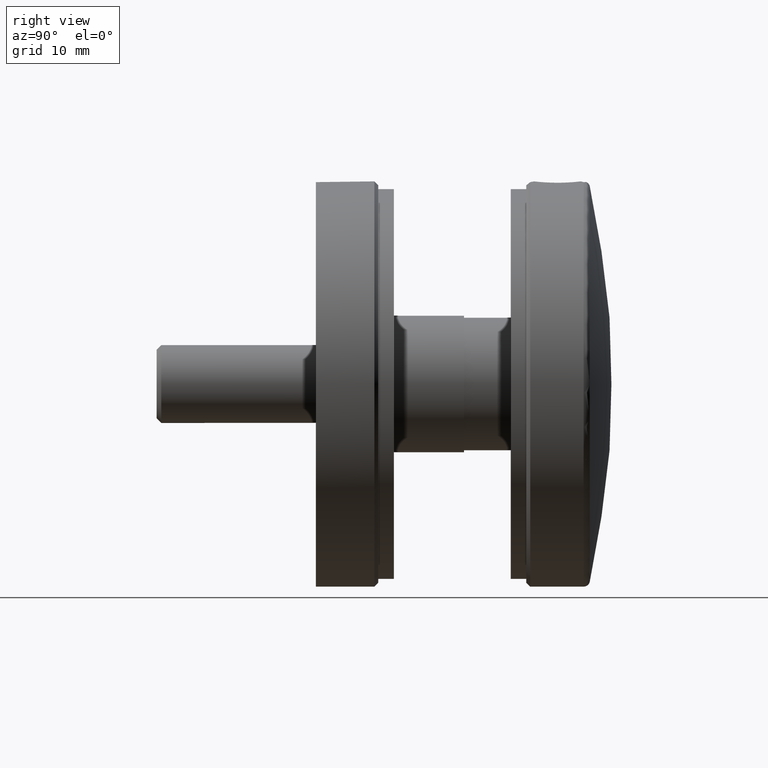
[diagram: clean part render]
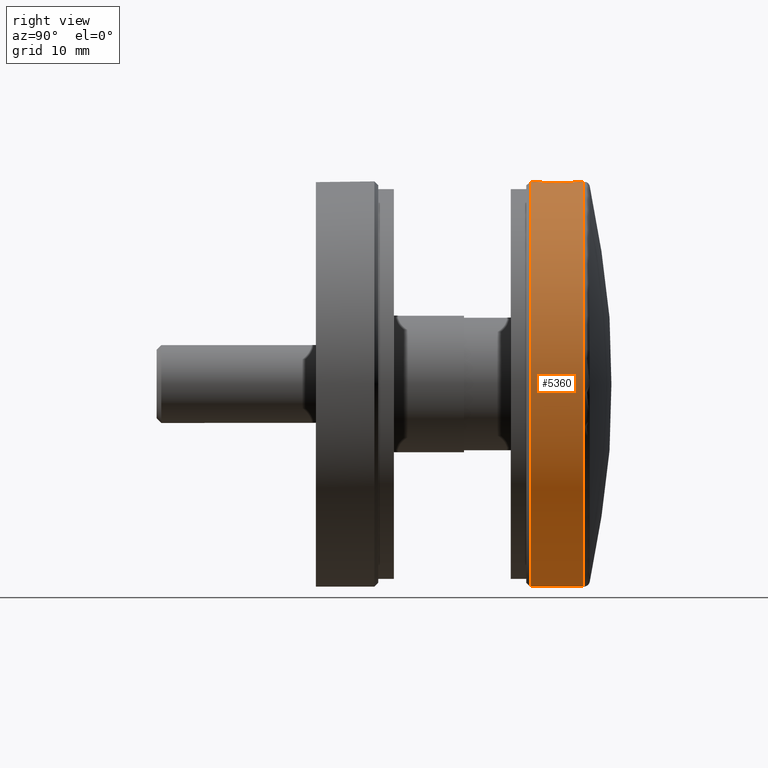
[diagram: same view with one face highlighted and labeled with its STEP entity id]
A machine part, right view. The second image highlights one B-rep face of the part: STEP entity #5360.
In plain terms, the highlighted cylindrical surface (bore or boss wall) has radius 26 mm, axis along (-0, -1, -0).
Its self-contained STEP definition (entity closure, byte-faithful):
#30 = CIRCLE ( 'NONE', #407, 26.00000000000000000 ) ;
#407 = AXIS2_PLACEMENT_3D ( 'NONE', #15301, #6650, #18016 ) ;
#735 = EDGE_LOOP ( 'NONE', ( #14445 ) ) ;
#1111 = CARTESIAN_POINT ( 'NONE',  ( -0.7796045846363135468, 9.096474947353174301, 25.98901706987856741 ) ) ;
#1172 = CARTESIAN_POINT ( 'NONE',  ( 2.902928602409397651, 11.21761824738087121, 25.83746369126680165 ) ) ;
#1233 = CARTESIAN_POINT ( 'NONE',  ( 2.259367191999810398, 13.98330208779995942, 25.90201740359187710 ) ) ;
#1295 = CARTESIAN_POINT ( 'NONE',  ( 2.258024676797180330, 10.01516929534798805, 25.90213498332273545 ) ) ;
#1313 = DIRECTION ( 'NONE',  ( 0.000000000000000000, 0.000000000000000000, -1.000000000000000000 ) ) ;
#1354 = CARTESIAN_POINT ( 'NONE',  ( 1.504046466543740523, 14.60321795858942728, 25.95698036821286436 ) ) ;
#1606 = EDGE_LOOP ( 'NONE', ( #15793 ) ) ;
#1650 = FACE_BOUND ( 'NONE', #735, .T. ) ;
#2440 = CARTESIAN_POINT ( 'NONE',  ( -2.604463692874469771, 10.49811864844873099, 25.86945821533745971 ) ) ;
#2499 = CARTESIAN_POINT ( 'NONE',  ( 1.831915627833451410, 14.38390114013664878, 25.93590312176945645 ) ) ;
#2556 = CARTESIAN_POINT ( 'NONE',  ( -1.985208033414802120, 9.742304057954541463, 25.92447032201573265 ) ) ;
#2614 = CARTESIAN_POINT ( 'NONE',  ( 0.3922386663974037346, 14.98079519086564204, 25.99776282357141710 ) ) ;
#2669 = CARTESIAN_POINT ( 'NONE',  ( -0.9701622282910388195, 9.154400163223010978, 25.98252887103858910 ) ) ;
#3825 = CARTESIAN_POINT ( 'NONE',  ( -1.828850462055285231, 14.38610005538056669, 25.93611007954821446 ) ) ;
#3885 = CARTESIAN_POINT ( 'NONE',  ( -2.846471190645786908, 12.96760209234577665, 25.84382593197624445 ) ) ;
#3945 = CARTESIAN_POINT ( 'NONE',  ( 2.999999999999992895, 11.99999999999999645, 25.82634314028991440 ) ) ;
#4002 = CARTESIAN_POINT ( 'NONE',  ( -2.697477801571565692, 10.67267253741143662, 25.85980002059914540 ) ) ;
#4059 = CARTESIAN_POINT ( 'NONE',  ( -2.981150286349715461, 11.61048699837327547, 25.82855464327467487 ) ) ;
#4151 = AXIS2_PLACEMENT_3D ( 'NONE', #7791, #16233, #10621 ) ;
#4215 = CARTESIAN_POINT ( 'NONE',  ( 2.999999999999993339, 11.99999999999999645, 25.82634314028991795 ) ) ;
#4676 = CYLINDRICAL_SURFACE ( 'NONE', #12745, 26.00000000000000000 ) ;
#5061 = CIRCLE ( 'NONE', #4151, 25.99999999999999645 ) ;
#5206 = CARTESIAN_POINT ( 'NONE',  ( 0.000000000000000000, 0.000000000000000000, 0.000000000000000000 ) ) ;
#5243 = CARTESIAN_POINT ( 'NONE',  ( -2.601817656857963179, 13.50622143525577457, 25.86972088012400306 ) ) ;
#5302 = CARTESIAN_POINT ( 'NONE',  ( -0.3960800891403037927, 9.019838661629146159, 25.99769051530946840 ) ) ;
#5354 = FACE_OUTER_BOUND ( 'NONE', #6028, .T. ) ;
#5360 = ADVANCED_FACE ( 'NONE', ( #5354, #1650, #7798 ), #4676, .T. ) ;
#5364 = CARTESIAN_POINT ( 'NONE',  ( -2.695847567316081772, 13.33081100915356210, 25.85997182781257564 ) ) ;
#5422 = CARTESIAN_POINT ( 'NONE',  ( -1.328482013767582348, 14.69699880324720809, 25.96667512040695058 ) ) ;
#5479 = CARTESIAN_POINT ( 'NONE',  ( -2.903294483696318817, 12.78061369236109002, 25.83742208091259229 ) ) ;
#6028 = EDGE_LOOP ( 'NONE', ( #10546 ) ) ;
#6650 = DIRECTION ( 'NONE',  ( 0.000000000000000000, 1.000000000000000000, 0.000000000000000000 ) ) ;
#6669 = CARTESIAN_POINT ( 'NONE',  ( 2.695823260802120203, 13.33086144524444272, 25.85997437936806520 ) ) ;
#6727 = CARTESIAN_POINT ( 'NONE',  ( 0.7744147086170469763, 9.095084657103818415, 25.98917292353332797 ) ) ;
#6789 = CARTESIAN_POINT ( 'NONE',  ( 0.1974822290173404438, 14.99989151536007981, 25.99998748254343894 ) ) ;
#6848 = CARTESIAN_POINT ( 'NONE',  ( 0.1955564443005312070, 8.999817893884703324, 26.00002101223516604 ) ) ;
#6909 = CARTESIAN_POINT ( 'NONE',  ( 2.980516047926724088, 11.60548793989382688, 25.82862846835401882 ) ) ;
#7699 = B_SPLINE_CURVE_WITH_KNOTS ( 'NONE', 3,
 ( #9358, #17909, #10929, #12311, #18215, #6669, #15318, #16786, #1233, #13971, #2499, #1354, #15260, #13861, #13915, #2614, #6789, #16663, #8228, #9769, #12373, #5422, #13743, #3825, #9542, #12495, #16540, #5243, #5364, #3885, #5479, #9656, #18094, #8104, #4059, #8283, #11050, #4002, #2440, #10990, #15143, #2556, #18034, #13805, #17978, #2669, #1111, #5302, #15202, #6848, #16728, #6727, #11112, #12433, #15375, #18154, #9710, #1295, #16601, #8342, #8165, #9602, #1172, #6909, #12558, #3945 ),
 .UNSPECIFIED., .T., .F.,
 ( 4, 2, 2, 2, 2, 2, 2, 2, 2, 2, 2, 2, 2, 2, 2, 2, 2, 2, 2, 2, 2, 2, 2, 2, 2, 2, 2, 2, 2, 2, 2, 2, 4 ),
 ( 0.000000000000000000, 0.0005866289597237301289, 0.001173257919447460258, 0.001759886879171190278, 0.002346515838894920516, 0.002933144798618650753, 0.003519773758342380557, 0.004106402718066110361, 0.004693031677789841032, 0.005279660637513570835, 0.005866289597237301506, 0.006452918556961031310, 0.007039547516684761114, 0.007626176476408492652, 0.008212805436132224191, 0.008799434395855955729, 0.009386063355579685533, 0.009972692315303417071, 0.01055932127502714514, 0.01114595023475087668, 0.01173257919447460648, 0.01231920815419833629, 0.01290583711392206609, 0.01349246607364579763, 0.01407909503336952743, 0.01466572399309326070, 0.01525235295281699398, 0.01583898191254072552, 0.01642561087226445879, 0.01701223983198819206, 0.01759886879171192187, 0.01818549775143565514, 0.01877212671115938494 ),
 .UNSPECIFIED. ) ;
#7791 = CARTESIAN_POINT ( 'NONE',  ( 0.000000000000000000, 15.36369618043119445, 0.000000000000000000 ) ) ;
#7798 = FACE_OUTER_BOUND ( 'NONE', #1606, .T. ) ;
#8104 = CARTESIAN_POINT ( 'NONE',  ( -3.000072698718969644, 11.80525902008768036, 25.82633469557359973 ) ) ;
#8165 = CARTESIAN_POINT ( 'NONE',  ( 2.695137482997138623, 10.66793484148104909, 25.86004491185303422 ) ) ;
#8228 = CARTESIAN_POINT ( 'NONE',  ( -0.3931071775928759449, 14.98059832483037823, 25.99774064185298528 ) ) ;
#8283 = CARTESIAN_POINT ( 'NONE',  ( -2.904394120158759751, 11.22316526659368208, 25.83729836467458085 ) ) ;
#8342 = CARTESIAN_POINT ( 'NONE',  ( 2.601881734802035329, 10.49364383145173463, 25.86971935331579786 ) ) ;
#9358 = CARTESIAN_POINT ( 'NONE',  ( 2.999999999999992895, 11.99999999999999645, 25.82634314028991440 ) ) ;
#9542 = CARTESIAN_POINT ( 'NONE',  ( -1.980419221218367110, 14.26210796718306106, 25.92484683164364156 ) ) ;
#9602 = CARTESIAN_POINT ( 'NONE',  ( 2.845128384431392377, 11.02870801769031495, 25.84397286354045065 ) ) ;
#9656 = CARTESIAN_POINT ( 'NONE',  ( -2.980222010311321945, 12.39592090752956288, 25.82866189750346209 ) ) ;
#9710 = CARTESIAN_POINT ( 'NONE',  ( 1.981300663533636985, 9.738877259449283841, 25.92477039080536372 ) ) ;
#9769 = CARTESIAN_POINT ( 'NONE',  ( -0.7779860760478943815, 14.90400366606730032, 25.98907057590952263 ) ) ;
#9924 = VERTEX_POINT ( 'NONE', #16824 ) ;
#10546 = ORIENTED_EDGE ( 'NONE', *, *, #18170, .T. ) ;
#10621 = DIRECTION ( 'NONE',  ( 0.000000000000000000, 0.000000000000000000, -1.000000000000000000 ) ) ;
#10929 = CARTESIAN_POINT ( 'NONE',  ( 2.980518406029750267, 12.39339455880333141, 25.82862722626442320 ) ) ;
#10990 = CARTESIAN_POINT ( 'NONE',  ( -2.385483644065923947, 10.17015123424564393, 25.89056907961828102 ) ) ;
#11050 = CARTESIAN_POINT ( 'NONE',  ( -2.846869066070601306, 11.03381098973157748, 25.84378029847804470 ) ) ;
#11112 = CARTESIAN_POINT ( 'NONE',  ( 0.9650574209274902504, 9.152663053310639896, 25.98272007820416007 ) ) ;
#12311 = CARTESIAN_POINT ( 'NONE',  ( 2.904216902360974739, 12.77702859124938861, 25.83731794412976512 ) ) ;
#12373 = CARTESIAN_POINT ( 'NONE',  ( -0.9650708797723883681, 14.84733299819957963, 25.98271963183762168 ) ) ;
#12433 = CARTESIAN_POINT ( 'NONE',  ( 1.328453288779692487, 9.302987695022517656, 25.96667653642898088 ) ) ;
#12495 = CARTESIAN_POINT ( 'NONE',  ( -2.260506445678780008, 13.98224704716868061, 25.90192761446530056 ) ) ;
#12558 = CARTESIAN_POINT ( 'NONE',  ( 2.999999999999992895, 11.80162860876600384, 25.82634314028991440 ) ) ;
#12745 = AXIS2_PLACEMENT_3D ( 'NONE', #5206, #15218, #1313 ) ;
#13743 = CARTESIAN_POINT ( 'NONE',  ( -1.503943005669260646, 14.60313713095285948, 25.95697701017397918 ) ) ;
#13805 = CARTESIAN_POINT ( 'NONE',  ( -1.505373951746080241, 9.397647443595346317, 25.95689653493615623 ) ) ;
#13861 = CARTESIAN_POINT ( 'NONE',  ( 0.9687707735393057407, 14.84598793248515669, 25.98257320991145392 ) ) ;
#13915 = CARTESIAN_POINT ( 'NONE',  ( 0.7795573863352976973, 14.90366689251970378, 25.98903255766745701 ) ) ;
#13971 = CARTESIAN_POINT ( 'NONE',  ( 1.982834401776008448, 14.25977764722337149, 25.92465261906889751 ) ) ;
#14445 = ORIENTED_EDGE ( 'NONE', *, *, #15519, .F. ) ;
#15143 = CARTESIAN_POINT ( 'NONE',  ( -2.261499722814578561, 10.01912622654223917, 25.90183065763342540 ) ) ;
#15202 = CARTESIAN_POINT ( 'NONE',  ( -0.2011044140179805706, 9.000184671113180102, 25.99997869180358734 ) ) ;
#15218 = DIRECTION ( 'NONE',  ( -0.000000000000000000, -1.000000000000000000, -0.000000000000000000 ) ) ;
#15260 = CARTESIAN_POINT ( 'NONE',  ( 1.329678934057940465, 14.69631564469696627, 25.96660511796630999 ) ) ;
#15301 = CARTESIAN_POINT ( 'NONE',  ( 0.000000000000000000, 8.500000000000021316, 0.000000000000000000 ) ) ;
#15318 = CARTESIAN_POINT ( 'NONE',  ( 2.603667476540603598, 13.50310663008073853, 25.86953563173865334 ) ) ;
#15375 = CARTESIAN_POINT ( 'NONE',  ( 1.500791135884895322, 9.394996845157550069, 25.95716343873230159 ) ) ;
#15519 = EDGE_CURVE ( 'NONE', #16967, #16967, #7699, .T. ) ;
#15534 = CARTESIAN_POINT ( 'NONE',  ( 0.000000000000000000, 15.36369618043119445, -25.99999999999999645 ) ) ;
#15793 = ORIENTED_EDGE ( 'NONE', *, *, #16718, .T. ) ;
#16233 = DIRECTION ( 'NONE',  ( -0.000000000000000000, -1.000000000000000000, -0.000000000000000000 ) ) ;
#16540 = CARTESIAN_POINT ( 'NONE',  ( -2.384525331870827269, 13.83090061806427684, 25.89065376688521525 ) ) ;
#16601 = CARTESIAN_POINT ( 'NONE',  ( 2.382280341642608157, 10.16597768763761955, 25.89086534581341681 ) ) ;
#16663 = CARTESIAN_POINT ( 'NONE',  ( -0.1941723281477219509, 15.00010757168617204, 26.00001241211576897 ) ) ;
#16718 = EDGE_CURVE ( 'NONE', #17870, #17870, #5061, .T. ) ;
#16728 = CARTESIAN_POINT ( 'NONE',  ( 0.3907017863126637236, 9.019127073408165884, 25.99777258736624930 ) ) ;
#16786 = CARTESIAN_POINT ( 'NONE',  ( 2.385970178955806542, 13.82908725186132237, 25.89052151725271855 ) ) ;
#16824 = CARTESIAN_POINT ( 'NONE',  ( 0.000000000000000000, 8.500000000000021316, -26.00000000000000000 ) ) ;
#16967 = VERTEX_POINT ( 'NONE', #4215 ) ;
#17870 = VERTEX_POINT ( 'NONE', #15534 ) ;
#17909 = CARTESIAN_POINT ( 'NONE',  ( 2.999999999999992895, 12.19837139123399083, 25.82634314028991440 ) ) ;
#17978 = CARTESIAN_POINT ( 'NONE',  ( -1.333240681001382821, 9.305352997739637644, 25.96643006980511004 ) ) ;
#18016 = DIRECTION ( 'NONE',  ( 0.000000000000000000, 0.000000000000000000, -1.000000000000000000 ) ) ;
#18034 = CARTESIAN_POINT ( 'NONE',  ( -1.831066051039921261, 9.615553171246942199, 25.93595623023576024 ) ) ;
#18094 = CARTESIAN_POINT ( 'NONE',  ( -2.999926885587588021, 12.19697443485104316, 25.82635163329338468 ) ) ;
#18154 = CARTESIAN_POINT ( 'NONE',  ( 1.826971693114301187, 9.612409184376673466, 25.93624649503414403 ) ) ;
#18170 = EDGE_CURVE ( 'NONE', #9924, #9924, #30, .T. ) ;
#18215 = CARTESIAN_POINT ( 'NONE',  ( 2.846458888054143710, 12.96763993227722978, 25.84382730467127232 ) ) ;